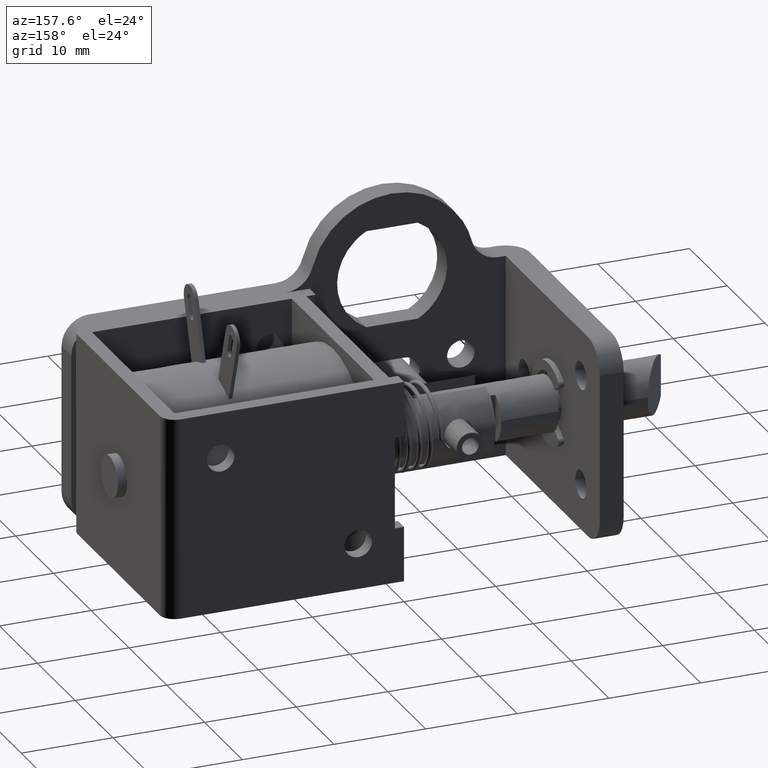
[diagram: clean part render]
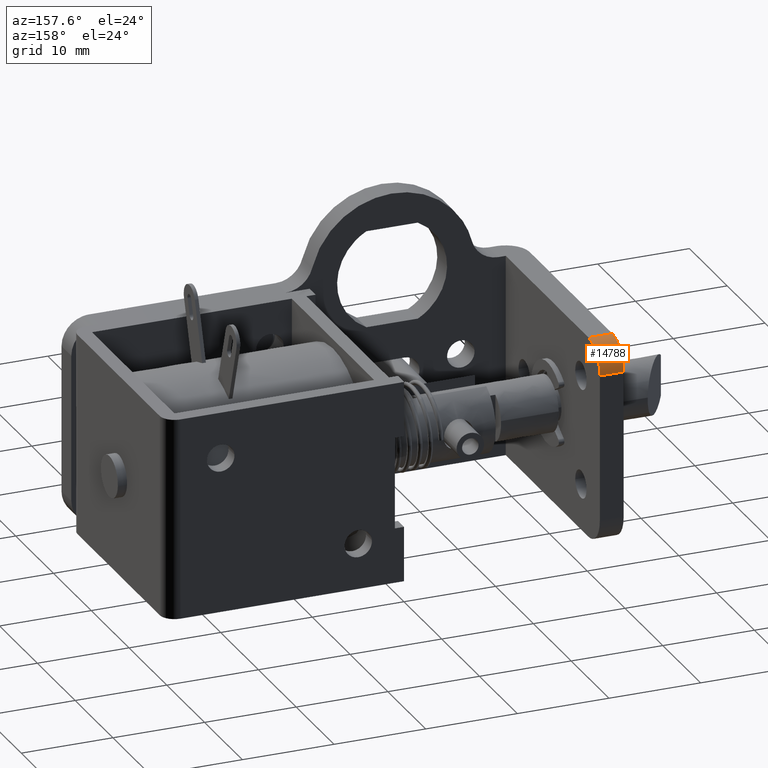
[diagram: same view with one face highlighted and labeled with its STEP entity id]
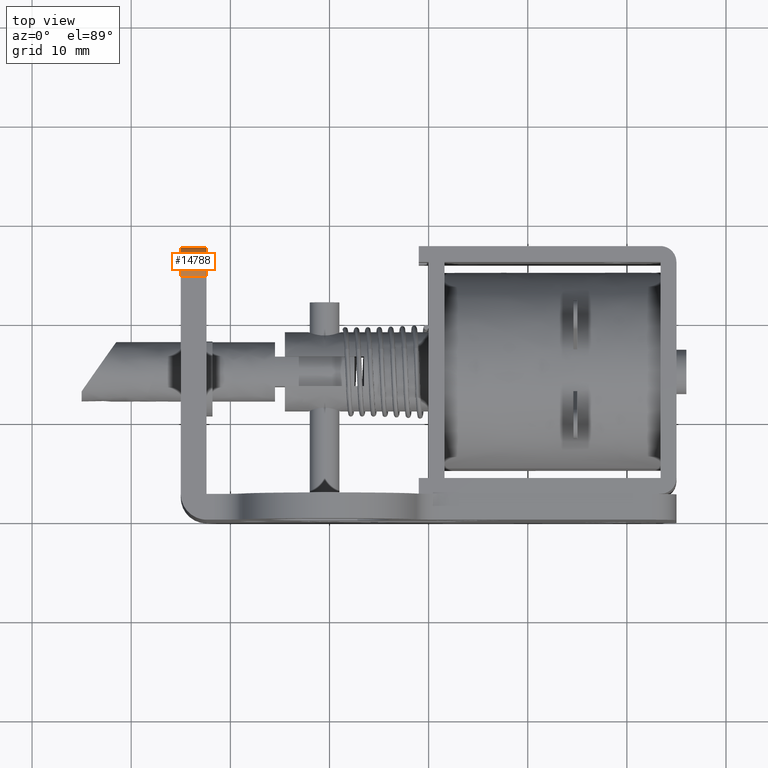
[diagram: same view with one face highlighted and labeled with its STEP entity id]
A machine part, auxiliary view. The second image highlights one B-rep face of the part: STEP entity #14788.
A second angle (top view) of the same face is appended — the face is thin or edge-on in the first view.
In plain terms, the highlighted face is a freeform B-spline surface patch.
Its self-contained STEP definition (entity closure, byte-faithful):
#14724=CARTESIAN_POINT('',(-12.334992000000080,27.497144657893848,-3.130858319026185));
#14725=CARTESIAN_POINT('',(-15.066617000000020,27.497144657893848,-3.130858319026185));
#14726=CARTESIAN_POINT('',(-12.334992000000081,27.643803655931482,0.228180951627324));
#14727=CARTESIAN_POINT('',(-15.066617000000020,27.643803655931482,0.228180951627324));
#14728=CARTESIAN_POINT('',(-12.334992000000087,24.289825594780673,-0.007371269370274));
#14729=CARTESIAN_POINT('',(-15.066617000000027,24.289825594780673,-0.007371269370274));
#14737=(BOUNDED_SURFACE()B_SPLINE_SURFACE(1,2,((#14724,#14726,#14728),(#14725,#14727,#14729)),.UNSPECIFIED.,.F.,.F.,.U.)B_SPLINE_SURFACE_WITH_KNOTS((2,2),(3,3),(0.0,2.731624999999939),(0.0,5.375227963623898),.UNSPECIFIED.)GEOMETRIC_REPRESENTATION_ITEM()RATIONAL_B_SPLINE_SURFACE(((1.0,0.664513877107349,0.996233603633478),(1.0,0.664513877107349,0.996233603633478)))REPRESENTATION_ITEM('')SURFACE());
#14738=CARTESIAN_POINT('',(-14.999992000000020,24.500000157079651,-3.685940E-014));
#14739=VERTEX_POINT('',#14738);
#14740=CARTESIAN_POINT('',(-14.999992000000020,27.500000000000000,-3.000000261799305));
#14741=VERTEX_POINT('',#14740);
#14742=CARTESIAN_POINT('',(-14.999992000000020,24.500000157079651,-3.903128E-014));
#14743=CARTESIAN_POINT('',(-14.999992000000026,25.742640874870595,-0.000000065064561));
#14744=CARTESIAN_POINT('',(-14.999992000000020,26.621320491655698,-0.878679804536459));
#14745=CARTESIAN_POINT('',(-14.999992000000026,27.500000108440808,-1.757359544008357));
#14746=CARTESIAN_POINT('',(-14.999992000000020,27.499999999999989,-3.000000261799305));
#14754=(BOUNDED_CURVE()B_SPLINE_CURVE(2,(#14742,#14743,#14744,#14745,#14746),.UNSPECIFIED.,.F.,.U.)B_SPLINE_CURVE_WITH_KNOTS((3,2,3),(0.0,0.500000000000000,1.0),.UNSPECIFIED.)CURVE()GEOMETRIC_REPRESENTATION_ITEM()RATIONAL_B_SPLINE_CURVE((1.0,0.923879529171748,1.0,0.923879529171748,1.0))REPRESENTATION_ITEM(''));
#14755=EDGE_CURVE('',#14739,#14741,#14754,.T.);
#14756=ORIENTED_EDGE('',*,*,#14755,.F.);
#14757=CARTESIAN_POINT('',(-12.399992000000079,24.500000157079651,-3.685940E-014));
#14758=VERTEX_POINT('',#14757);
#14759=CARTESIAN_POINT('',(-12.399992000000079,24.500000157079651,-3.685940E-014));
#14760=CARTESIAN_POINT('',(-14.999992000000020,24.500000157079651,-3.685940E-014));
#14761=QUASI_UNIFORM_CURVE('',1,(#14759,#14760),.UNSPECIFIED.,.F.,.U.);
#14762=EDGE_CURVE('',#14758,#14739,#14761,.T.);
#14763=ORIENTED_EDGE('',*,*,#14762,.F.);
#14764=CARTESIAN_POINT('',(-12.399992000000079,27.500000000000000,-3.000000261799305));
#14765=VERTEX_POINT('',#14764);
#14766=CARTESIAN_POINT('',(-12.399992000000079,24.500000157079651,-3.903128E-014));
#14767=CARTESIAN_POINT('',(-12.399992000000085,25.742640874870595,-0.000000065064561));
#14768=CARTESIAN_POINT('',(-12.399992000000079,26.621320491655698,-0.878679804536459));
#14769=CARTESIAN_POINT('',(-12.399992000000085,27.500000108440808,-1.757359544008357));
#14770=CARTESIAN_POINT('',(-12.399992000000079,27.499999999999989,-3.000000261799305));
#14778=(BOUNDED_CURVE()B_SPLINE_CURVE(2,(#14766,#14767,#14768,#14769,#14770),.UNSPECIFIED.,.F.,.U.)B_SPLINE_CURVE_WITH_KNOTS((3,2,3),(0.0,0.500000000000000,1.0),.UNSPECIFIED.)CURVE()GEOMETRIC_REPRESENTATION_ITEM()RATIONAL_B_SPLINE_CURVE((1.0,0.923879529171748,1.0,0.923879529171748,1.0))REPRESENTATION_ITEM(''));
#14779=EDGE_CURVE('',#14758,#14765,#14778,.T.);
#14780=ORIENTED_EDGE('',*,*,#14779,.T.);
#14781=CARTESIAN_POINT('',(-12.399992000000079,27.500000000000000,-3.000000261799305));
#14782=CARTESIAN_POINT('',(-14.999992000000020,27.500000000000000,-3.000000261799305));
#14783=QUASI_UNIFORM_CURVE('',1,(#14781,#14782),.UNSPECIFIED.,.F.,.U.);
#14784=EDGE_CURVE('',#14765,#14741,#14783,.T.);
#14785=ORIENTED_EDGE('',*,*,#14784,.T.);
#14786=EDGE_LOOP('',(#14756,#14763,#14780,#14785));
#14787=FACE_OUTER_BOUND('',#14786,.T.);
#14788=ADVANCED_FACE('',(#14787),#14737,.T.);